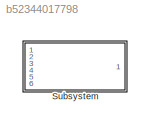
MODEL slx_b52344017798
KIND model
CONFIG AbsTol = auto
CONFIG EnableMultiTasking = off
CONFIG FixedStep = auto
CONFIG MaxStep = auto
CONFIG MinStep = auto
CONFIG RelTol = 1e-3
CONFIG SampleTimeConstraint = Unconstrained
CONFIG SolverName = VariableStepAuto
CONFIG StartTime = 0.0
CONFIG StopTime = 10.0
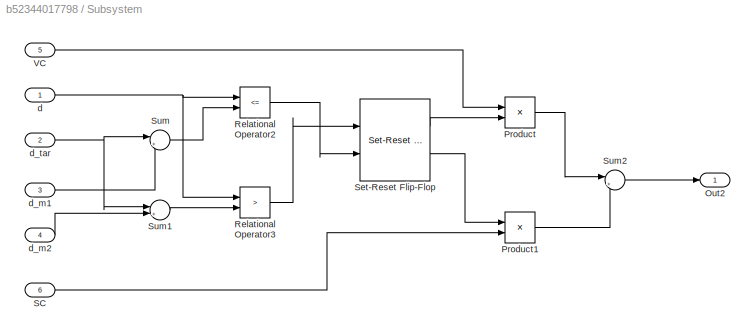
BLOCK [SubSystem] Subsystem
  Ports = [6, 1]
  RequestExecContextInheritance = off
BLOCK [Outport] Subsystem/Out2
BLOCK [Product] Subsystem/Product
  Ports = [2, 1]
BLOCK [Product] Subsystem/Product1
  Ports = [2, 1]
BLOCK [RelationalOperator] Subsystem/Relational Operator2
  InputSameDT = off
  Operator = <=
  OutDataTypeStr = boolean
  Ports = [2, 1]
  RndMeth = Simplest
BLOCK [RelationalOperator] Subsystem/Relational Operator3
  InputSameDT = off
  Operator = >
  OutDataTypeStr = boolean
  Ports = [2, 1]
  RndMeth = Simplest
BLOCK [Inport] Subsystem/SC
  Port = 6
BLOCK [Reference] Subsystem/Set-Reset Flip-Flop  REF=eeGeneralControl/Set-Reset Flip-Flop
  Ports = [2, 2]
  SourceBlock = eeGeneralControl/Set-Reset Flip-Flop
  SourceProductBaseCode = PS
  SourceType = Set-Reset Flip-Flop
BLOCK [Sum] Subsystem/Sum
  Inputs = |+-
  Ports = [2, 1]
BLOCK [Sum] Subsystem/Sum1
  Inputs = |++
  Ports = [2, 1]
BLOCK [Sum] Subsystem/Sum2
  Inputs = |++
  Ports = [2, 1]
BLOCK [Inport] Subsystem/VC
  Port = 5
BLOCK [Inport] Subsystem/d
BLOCK [Inport] Subsystem/d_m1
  Port = 3
BLOCK [Inport] Subsystem/d_m2
  Port = 4
BLOCK [Inport] Subsystem/d_tar
  Port = 2
LINE Subsystem/Product1:1 -> Subsystem/Sum2:2
LINE Subsystem/Product:1 -> Subsystem/Sum2:1
LINE Subsystem/Relational Operator2:1 -> Subsystem/Set-Reset Flip-Flop:2
LINE Subsystem/Relational Operator3:1 -> Subsystem/Set-Reset Flip-Flop:1
LINE Subsystem/SC:1 -> Subsystem/Product1:2
LINE Subsystem/Set-Reset Flip-Flop:1 -> Subsystem/Product:2
LINE Subsystem/Set-Reset Flip-Flop:2 -> Subsystem/Product1:1
LINE Subsystem/Sum1:1 -> Subsystem/Relational Operator3:2
LINE Subsystem/Sum2:1 -> Subsystem/Out2:1
LINE Subsystem/Sum:1 -> Subsystem/Relational Operator2:2
LINE Subsystem/VC:1 -> Subsystem/Product:1
NET Subsystem/d:1 -> Subsystem/Relational Operator2:1, Subsystem/Relational Operator3:1
LINE Subsystem/d_m1:1 -> Subsystem/Sum:2
LINE Subsystem/d_m2:1 -> Subsystem/Sum1:2
NET Subsystem/d_tar:1 -> Subsystem/Sum1:1, Subsystem/Sum:1
note: NET lines group one-source signal fan-out (src -> all destinations, sorted); 1:1 wires keep LINE
